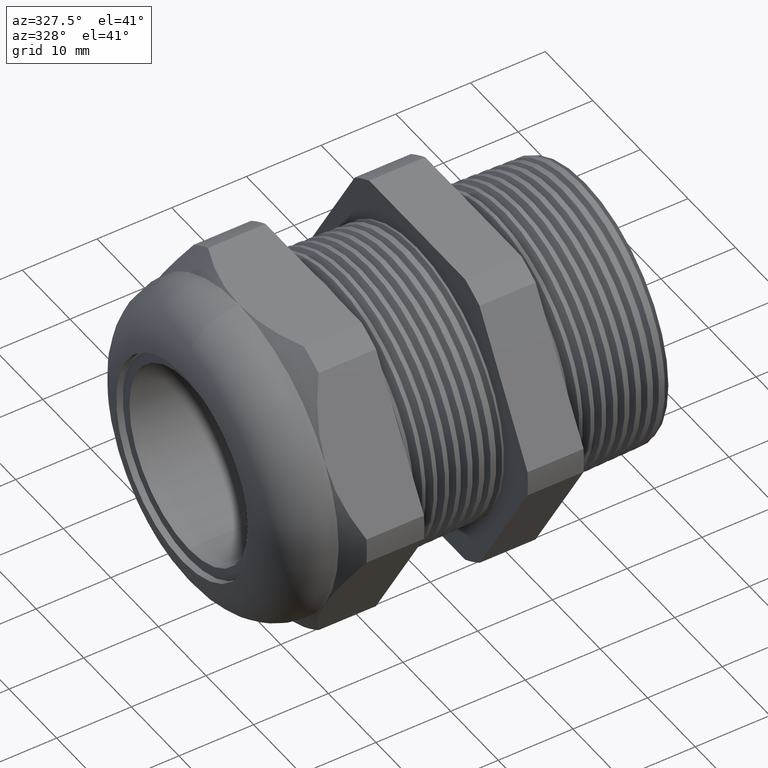
[diagram: clean part render]
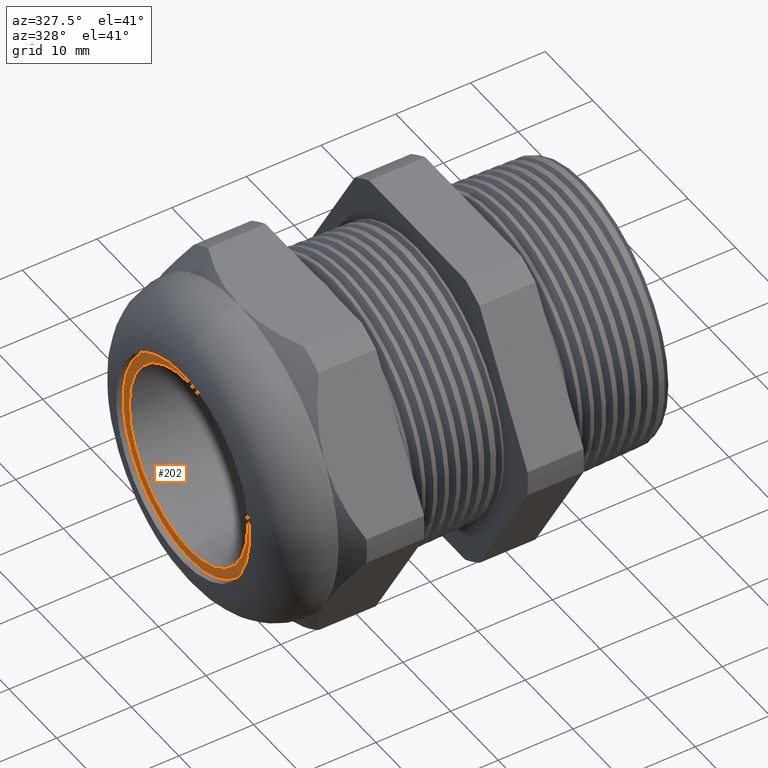
[diagram: same view with one face highlighted and labeled with its STEP entity id]
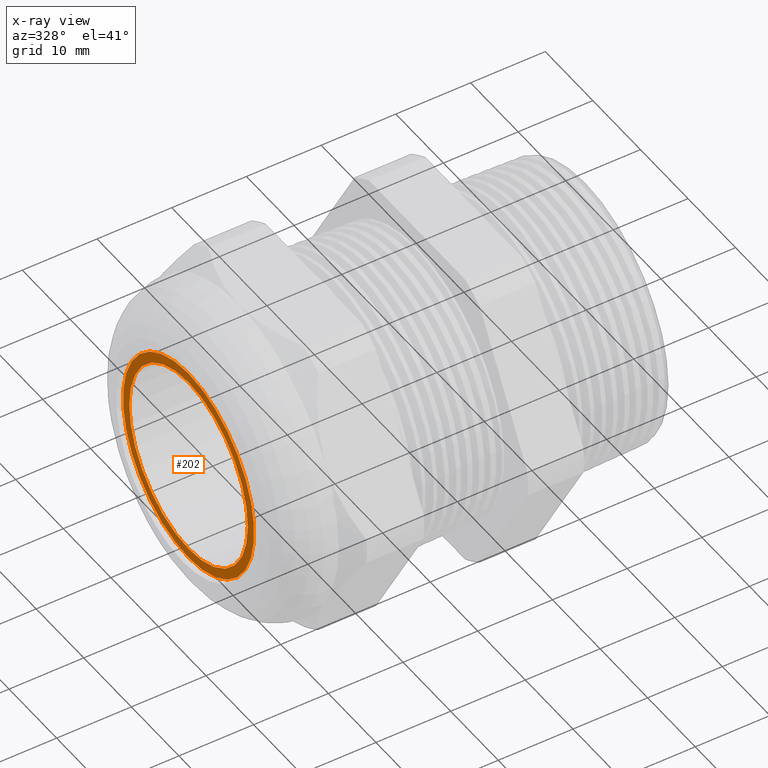
[diagram: x-ray of the same camera — body ghosted, the highlighted face saturated]
A machine part, auxiliary view. The second image highlights one B-rep face of the part: STEP entity #202.
The next image is the same camera in x-ray: the body ghosted, the highlighted face saturated — about 0% of this face is hidden behind the body in this view.
In plain terms, the highlighted planar face has unit normal (-1, 0, 0).
Its self-contained STEP definition (entity closure, byte-faithful):
#199 = EDGE_CURVE ( 'NONE', #277, #276, #1259, .T. ) ;
#202 = ADVANCED_FACE ( 'NONE', ( #1254, #1253 ), #1252, .T. ) ;
#203 = EDGE_LOOP ( 'NONE', ( #233, #235 ) ) ;
#214 = EDGE_CURVE ( 'NONE', #215, #253, #1296, .T. ) ;
#215 = VERTEX_POINT ( 'NONE', #1291 ) ;
#227 = ORIENTED_EDGE ( 'NONE', *, *, #199, .F. ) ;
#230 = ORIENTED_EDGE ( 'NONE', *, *, #275, .F. ) ;
#232 = EDGE_LOOP ( 'NONE', ( #230, #227 ) ) ;
#233 = ORIENTED_EDGE ( 'NONE', *, *, #234, .T. ) ;
#234 = EDGE_CURVE ( 'NONE', #253, #215, #1272, .T. ) ;
#235 = ORIENTED_EDGE ( 'NONE', *, *, #214, .T. ) ;
#253 = VERTEX_POINT ( 'NONE', #1360 ) ;
#275 = EDGE_CURVE ( 'NONE', #276, #277, #1386, .T. ) ;
#276 = VERTEX_POINT ( 'NONE', #1382 ) ;
#277 = VERTEX_POINT ( 'NONE', #1381 ) ;
#1248 = DIRECTION ( 'NONE',  ( 0.0000000000000000000, 0.0000000000000000000, 1.000000000000000000 ) ) ;
#1249 = DIRECTION ( 'NONE',  ( -1.000000000000000000, 0.0000000000000000000, 0.0000000000000000000 ) ) ;
#1250 = CARTESIAN_POINT ( 'NONE',  ( -1.810000000000000100, 0.4899999999999998800, 0.0000000000000000000 ) ) ;
#1251 = AXIS2_PLACEMENT_3D ( 'NONE', #1250, #1249, #1248 ) ;
#1252 = PLANE ( 'NONE',  #1251 ) ;
#1253 = FACE_OUTER_BOUND ( 'NONE', #232, .T. ) ;
#1254 = FACE_BOUND ( 'NONE', #203, .T. ) ;
#1255 = DIRECTION ( 'NONE',  ( 0.0000000000000000000, 0.0000000000000000000, -1.000000000000000000 ) ) ;
#1256 = DIRECTION ( 'NONE',  ( 1.000000000000000000, 0.0000000000000000000, 0.0000000000000000000 ) ) ;
#1257 = CARTESIAN_POINT ( 'NONE',  ( -1.810000000000000100, 0.0000000000000000000, 0.0000000000000000000 ) ) ;
#1258 = AXIS2_PLACEMENT_3D ( 'NONE', #1257, #1256, #1255 ) ;
#1259 = CIRCLE ( 'NONE', #1258, 0.5422500000000000100 ) ;
#1264 = DIRECTION ( 'NONE',  ( 0.0000000000000000000, 0.0000000000000000000, -1.000000000000000000 ) ) ;
#1265 = DIRECTION ( 'NONE',  ( 1.000000000000000000, 0.0000000000000000000, 0.0000000000000000000 ) ) ;
#1266 = CARTESIAN_POINT ( 'NONE',  ( -1.810000000000000100, 0.0000000000000000000, 0.0000000000000000000 ) ) ;
#1267 = AXIS2_PLACEMENT_3D ( 'NONE', #1266, #1265, #1264 ) ;
#1272 = CIRCLE ( 'NONE', #1267, 0.4899999999999998800 ) ;
#1291 = CARTESIAN_POINT ( 'NONE',  ( -1.810000000000000100, 6.000769315822029800E-017, 0.4899999999999998800 ) ) ;
#1292 = DIRECTION ( 'NONE',  ( 0.0000000000000000000, 0.0000000000000000000, -1.000000000000000000 ) ) ;
#1293 = DIRECTION ( 'NONE',  ( 1.000000000000000000, 0.0000000000000000000, 0.0000000000000000000 ) ) ;
#1294 = CARTESIAN_POINT ( 'NONE',  ( -1.810000000000000100, 0.0000000000000000000, 0.0000000000000000000 ) ) ;
#1295 = AXIS2_PLACEMENT_3D ( 'NONE', #1294, #1293, #1292 ) ;
#1296 = CIRCLE ( 'NONE', #1295, 0.4899999999999998800 ) ;
#1360 = CARTESIAN_POINT ( 'NONE',  ( -1.810000000000000100, 0.0000000000000000000, -0.4899999999999998800 ) ) ;
#1381 = CARTESIAN_POINT ( 'NONE',  ( -1.810000000000000100, 6.695756374338154500E-017, 0.5422500000000000100 ) ) ;
#1382 = CARTESIAN_POINT ( 'NONE',  ( -1.810000000000000100, 0.0000000000000000000, -0.5422500000000000100 ) ) ;
#1383 = DIRECTION ( 'NONE',  ( 0.0000000000000000000, 0.0000000000000000000, -1.000000000000000000 ) ) ;
#1384 = DIRECTION ( 'NONE',  ( 1.000000000000000000, 0.0000000000000000000, 0.0000000000000000000 ) ) ;
#1385 = AXIS2_PLACEMENT_3D ( 'NONE', #1391, #1384, #1383 ) ;
#1386 = CIRCLE ( 'NONE', #1385, 0.5422500000000000100 ) ;
#1391 = CARTESIAN_POINT ( 'NONE',  ( -1.810000000000000100, 0.0000000000000000000, 0.0000000000000000000 ) ) ;